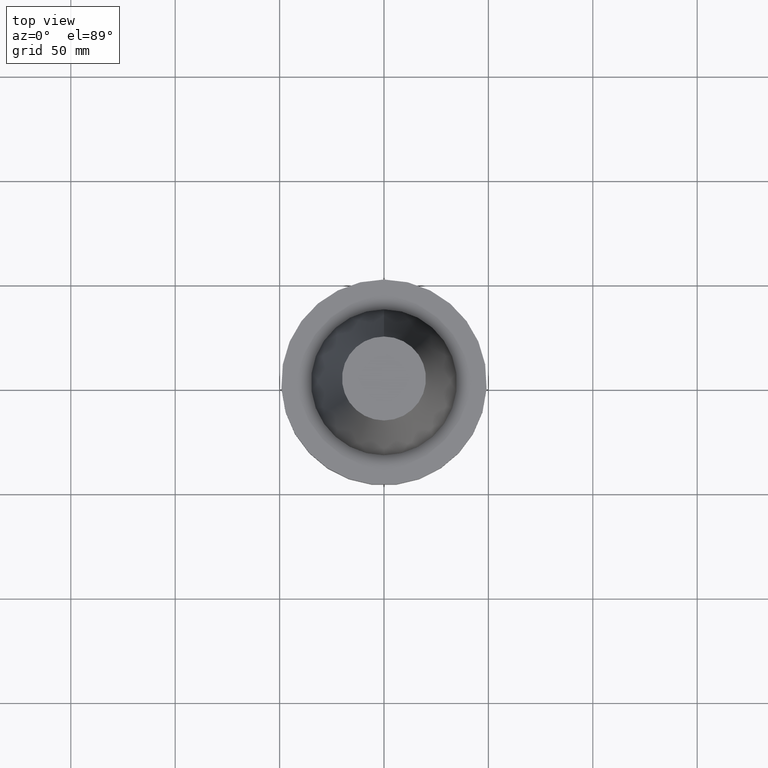
[diagram: clean part render]
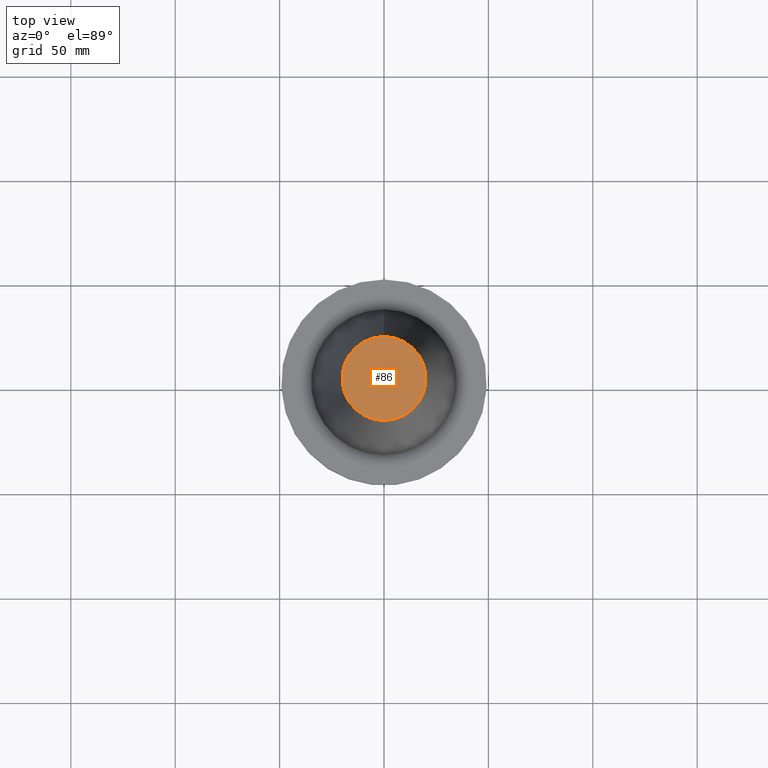
[diagram: same view with one face highlighted and labeled with its STEP entity id]
A machine part, top view. The second image highlights one B-rep face of the part: STEP entity #86.
In plain terms, the highlighted planar face has unit normal (-0, -0, 1).
Its self-contained STEP definition (entity closure, byte-faithful):
#86=ADVANCED_FACE('Unnamed[1]',(#202),#203,.T.);
#96=EDGE_CURVE('Unnamed[1]',#218,#218,#219,.T.);
#202=FACE_OUTER_BOUND('',#352,.T.);
#203=PLANE('',#353);
#218=VERTEX_POINT('',#372);
#219=CIRCLE('',#373,20.1083333333333);
#352=EDGE_LOOP('',(#513));
#353=AXIS2_PLACEMENT_3D('',#514,#515,#516);
#372=CARTESIAN_POINT('',(-6.22120573966855E-015,20.1083333333332,101.6));
#373=AXIS2_PLACEMENT_3D('',#532,#533,#534);
#513=ORIENTED_EDGE('',*,*,#96,.F.);
#514=CARTESIAN_POINT('',(-6.22120573966855E-015,10.0541666666666,101.6));
#515=DIRECTION('',(-6.12323399573677E-017,-1.22464679914735E-016,1.0));
#516=DIRECTION('',(1.23259516440783E-032,-1.0,-1.22464679914735E-016));
#532=CARTESIAN_POINT('',(-6.22120573966855E-015,-6.80832908752505E-014,101.6));
#533=DIRECTION('',(6.12323399573677E-017,4.32878246115847E-016,-1.0));
#534=DIRECTION('',(-3.13333006570868E-032,1.0,4.32878246115847E-016));